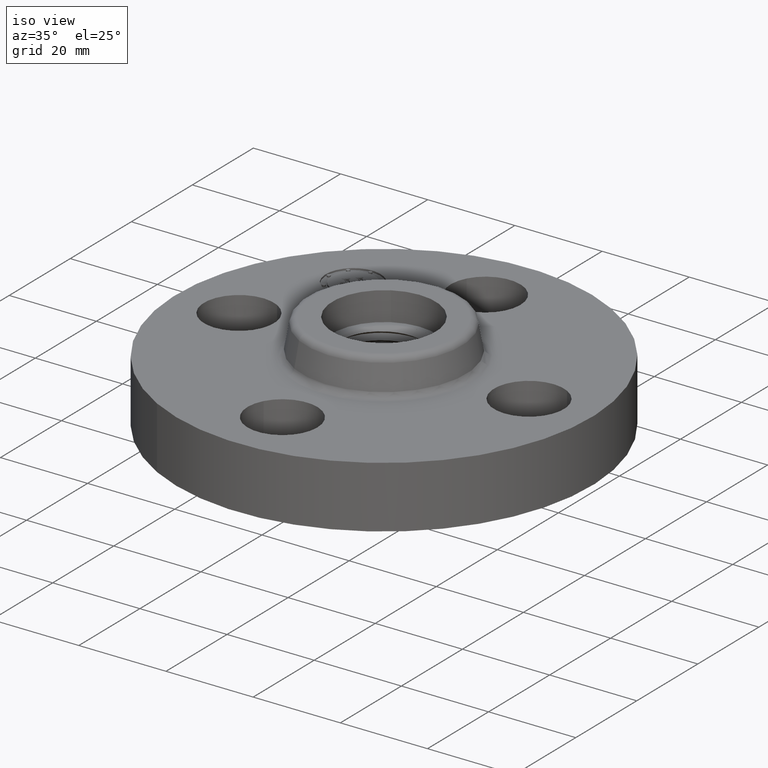
[diagram: clean part render]
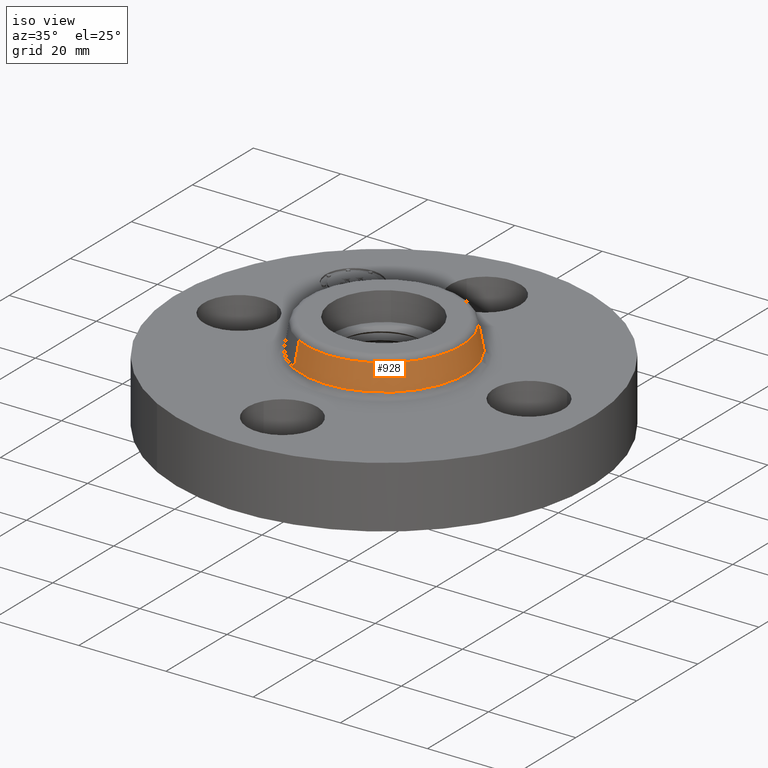
[diagram: same view with one face highlighted and labeled with its STEP entity id]
A machine part, iso view. The second image highlights one B-rep face of the part: STEP entity #928.
In plain terms, the highlighted conical surface has half-angle 10 deg.
Its self-contained STEP definition (entity closure, byte-faithful):
#871=AXIS2_PLACEMENT_3D('Circle Axis2P3D',#869,#870,$) ;
#889=AXIS2_PLACEMENT_3D('Cone Axis2P3D',#886,#887,#888) ;
#919=AXIS2_PLACEMENT_3D('Circle Axis2P3D',#917,#918,$) ;
#838=CARTESIAN_POINT('Vertex',(-0.336709115179,-0.616341901124,0.830418890663)) ;
#840=CARTESIAN_POINT('Vertex',(0.336709115179,0.616341901124,0.830418890663)) ;
#869=CARTESIAN_POINT('Axis2P3D Location',(0.,0.,0.830418890663)) ;
#886=CARTESIAN_POINT('Axis2P3D Location',(0.,0.,0.830418890663)) ;
#895=CARTESIAN_POINT('Vertex',(-0.355377782267,-0.650514667009,0.609581109342)) ;
#897=CARTESIAN_POINT('Vertex',(0.355377782267,0.650514667009,0.609581109342)) ;
#900=CARTESIAN_POINT('Line Origine',(-0.346043448723,-0.633428284067,0.720000000003)) ;
#905=CARTESIAN_POINT('Line Origine',(0.346043448723,0.633428284067,0.720000000003)) ;
#917=CARTESIAN_POINT('Axis2P3D Location',(0.,0.,0.609581109342)) ;
#870=DIRECTION('Axis2P3D Direction',(0.,0.,-0.0393700787402)) ;
#887=DIRECTION('Axis2P3D Direction',(0.,0.,-0.0393700787402)) ;
#888=DIRECTION('Axis2P3D XDirection',(0.0188750212049,0.0345504945626,0.)) ;
#901=DIRECTION('Vector Direction',(-0.00327761303565,-0.00599963041829,-0.03877195878)) ;
#906=DIRECTION('Vector Direction',(0.00327761303565,0.00599963041829,-0.03877195878)) ;
#918=DIRECTION('Axis2P3D Direction',(0.,0.,-0.0393700787402)) ;
#902=VECTOR('Line Direction',#901,0.0393700787402) ;
#907=VECTOR('Line Direction',#906,0.0393700787402) ;
#923=ORIENTED_EDGE('',*,*,#921,.F.) ;
#924=ORIENTED_EDGE('',*,*,#909,.T.) ;
#925=ORIENTED_EDGE('',*,*,#873,.T.) ;
#926=ORIENTED_EDGE('',*,*,#904,.F.) ;
#928=ADVANCED_FACE('PartBody',(#927),#890,.T.) ;
#872=CIRCLE('generated circle',#871,0.702317853486) ;
#920=CIRCLE('generated circle',#919,0.741257512693) ;
#890=CONICAL_SURFACE('Cone',#889,0.702317853486,0.174532925199) ;
#873=EDGE_CURVE('',#841,#839,#872,.T.) ;
#904=EDGE_CURVE('',#896,#839,#903,.F.) ;
#909=EDGE_CURVE('',#898,#841,#908,.F.) ;
#921=EDGE_CURVE('',#898,#896,#920,.T.) ;
#922=EDGE_LOOP('',(#923,#924,#925,#926)) ;
#927=FACE_OUTER_BOUND('',#922,.T.) ;
#903=LINE('Line',#900,#902) ;
#908=LINE('Line',#905,#907) ;
#839=VERTEX_POINT('',#838) ;
#841=VERTEX_POINT('',#840) ;
#896=VERTEX_POINT('',#895) ;
#898=VERTEX_POINT('',#897) ;